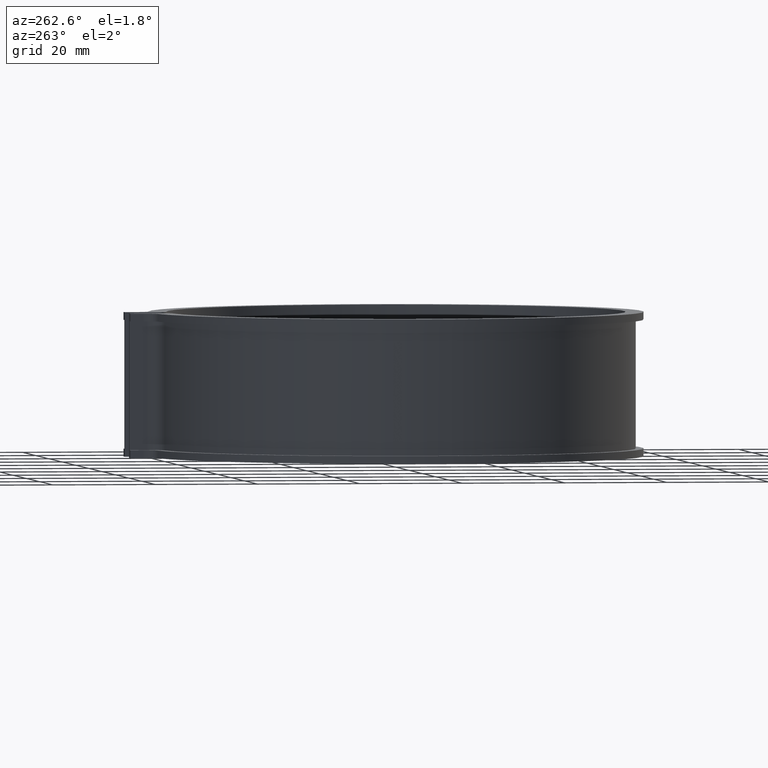
[diagram: clean part render]
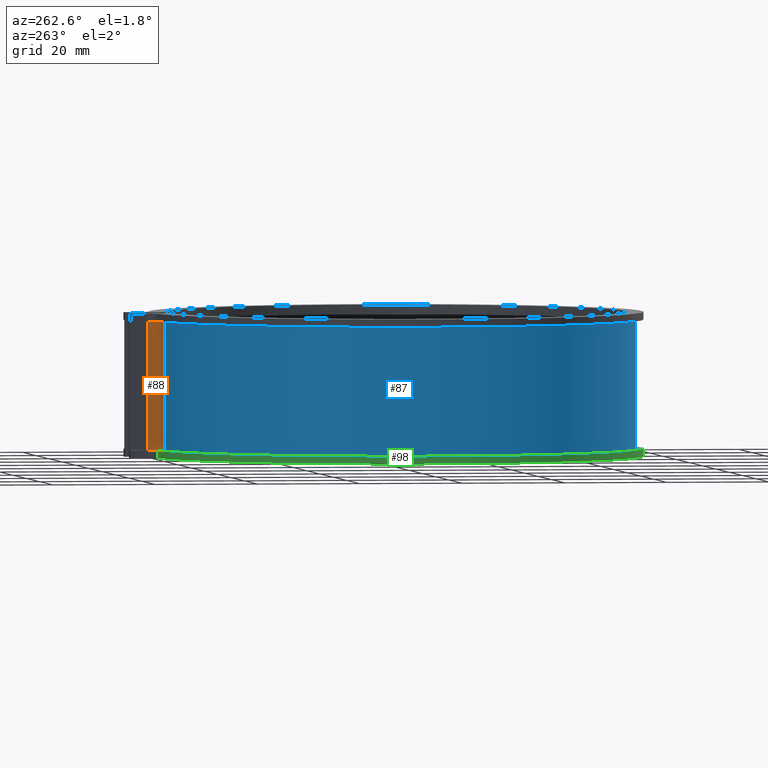
[diagram: same view with three faces highlighted in distinct colors, each labeled with its STEP entity id]
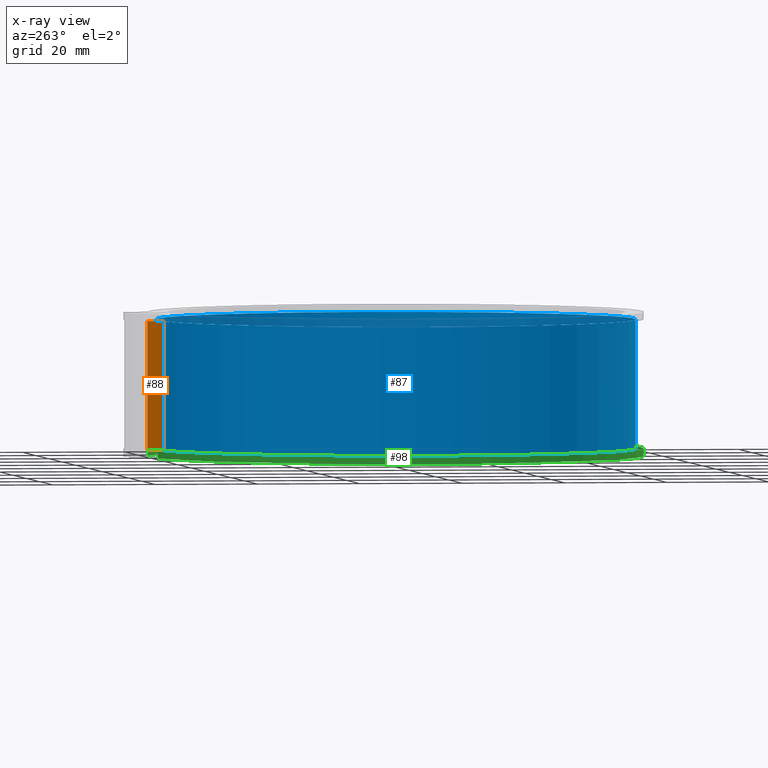
[diagram: x-ray of the same camera — body ghosted, the three highlighted faces saturated]
A machine part, auxiliary view with three faces highlighted in distinct colors.
The next image is the same camera in x-ray (body ghosted, the three faces saturated) — at least one of them is partly hidden behind the body in this view.
Their STEP definitions:

[orange] entity #88 — the highlighted cylindrical surface (edge-blend (fillet) strip) has radius 3 mm, axis along (0, 0, 1).
#88 = ADVANCED_FACE( '', ( #128 ), #129, .F. );
#128 = FACE_OUTER_BOUND( '', #180, .T. );
#129 = CYLINDRICAL_SURFACE( '', #181, 3.00000000000000 );
#180 = EDGE_LOOP( '', ( #329, #330, #331, #332 ) );
#181 = AXIS2_PLACEMENT_3D( '', #333, #334, #335 );
#329 = ORIENTED_EDGE( '', *, *, #447, .T. );
#330 = ORIENTED_EDGE( '', *, *, #486, .F. );
#331 = ORIENTED_EDGE( '', *, *, #487, .F. );
#332 = ORIENTED_EDGE( '', *, *, #429, .T. );
#333 = CARTESIAN_POINT( '', ( -7.00000000000000, 49.0530580086502, 14.0000000000000 ) );
#334 = DIRECTION( '', ( 0.000000000000000, 0.000000000000000, 1.00000000000000 ) );
#335 = DIRECTION( '', ( 0.107411385606873, 0.994214662053428, 0.000000000000000 ) );
#429 = EDGE_CURVE( '', #503, #501, #504, .T. );
#447 = EDGE_CURVE( '', #501, #537, #538, .T. );
#486 = EDGE_CURVE( '', #600, #537, #602, .T. );
#487 = EDGE_CURVE( '', #503, #600, #603, .T. );
#501 = VERTEX_POINT( '', #621 );
#503 = VERTEX_POINT( '', #624 );
#504 = LINE( '', #625, #626 );
#537 = VERTEX_POINT( '', #674 );
#538 = CIRCLE( '', #675, 3.00000000000000 );
#600 = VERTEX_POINT( '', #758 );
#602 = LINE( '', #760, #761 );
#603 = CIRCLE( '', #762, 3.00000000000000 );
#621 = CARTESIAN_POINT( '', ( -4.00000000000000, 49.0530580086502, -12.5000000000000 ) );
#624 = CARTESIAN_POINT( '', ( -4.00000000000000, 49.0530580086502, 12.5000000000000 ) );
#625 = CARTESIAN_POINT( '', ( -4.00000000000000, 49.0530580086502, 14.0000000000000 ) );
#626 = VECTOR( '', #789, 1000.00000000000 );
#674 = CARTESIAN_POINT( '', ( -6.57618567103935, 46.0831453138782, -12.5000000000000 ) );
#675 = AXIS2_PLACEMENT_3D( '', #811, #812, #813 );
#758 = CARTESIAN_POINT( '', ( -6.57618567103940, 46.0831453138782, 12.5000000000000 ) );
#760 = CARTESIAN_POINT( '', ( -6.57618567103935, 46.0831453138782, 14.0000000000000 ) );
#761 = VECTOR( '', #886, 1000.00000000000 );
#762 = AXIS2_PLACEMENT_3D( '', #887, #888, #889 );
#789 = DIRECTION( '', ( 0.000000000000000, 0.000000000000000, -1.00000000000000 ) );
#811 = CARTESIAN_POINT( '', ( -7.00000000000000, 49.0530580086502, -12.5000000000000 ) );
#812 = DIRECTION( '', ( 0.000000000000000, 0.000000000000000, -1.00000000000000 ) );
#813 = DIRECTION( '', ( 1.00000000000000, 1.11022302462516E-015, 0.000000000000000 ) );
#886 = DIRECTION( '', ( 0.000000000000000, 0.000000000000000, -1.00000000000000 ) );
#887 = CARTESIAN_POINT( '', ( -7.00000000000000, 49.0530580086502, 12.5000000000000 ) );
#888 = DIRECTION( '', ( 0.000000000000000, 0.000000000000000, -1.00000000000000 ) );
#889 = DIRECTION( '', ( 1.00000000000000, 1.11022302462516E-015, 0.000000000000000 ) );

[blue] entity #87 — the highlighted cylindrical surface (partial cylindrical patch) has radius 46.55 mm, axis along (0, 0, 1).
#87 = ADVANCED_FACE( '', ( #126 ), #127, .T. );
#126 = FACE_OUTER_BOUND( '', #178, .T. );
#127 = CYLINDRICAL_SURFACE( '', #179, 46.5500000000000 );
#178 = EDGE_LOOP( '', ( #322, #323, #324, #325 ) );
#179 = AXIS2_PLACEMENT_3D( '', #326, #327, #328 );
#322 = ORIENTED_EDGE( '', *, *, #455, .T. );
#323 = ORIENTED_EDGE( '', *, *, #484, .F. );
#324 = ORIENTED_EDGE( '', *, *, #485, .F. );
#325 = ORIENTED_EDGE( '', *, *, #486, .T. );
#326 = CARTESIAN_POINT( '', ( 8.67361737988404E-016, 1.38777878078145E-014, 14.0000000000000 ) );
#327 = DIRECTION( '', ( 0.000000000000000, 0.000000000000000, 1.00000000000000 ) );
#328 = DIRECTION( '', ( 0.107411385606873, 0.994214662053428, 0.000000000000000 ) );
#455 = EDGE_CURVE( '', #537, #550, #552, .T. );
#484 = EDGE_CURVE( '', #597, #550, #599, .T. );
#485 = EDGE_CURVE( '', #600, #597, #601, .T. );
#486 = EDGE_CURVE( '', #600, #537, #602, .T. );
#537 = VERTEX_POINT( '', #674 );
#550 = VERTEX_POINT( '', #690 );
#552 = CIRCLE( '', #692, 46.5500000000000 );
#597 = VERTEX_POINT( '', #754 );
#599 = LINE( '', #756, #757 );
#600 = VERTEX_POINT( '', #758 );
#601 = CIRCLE( '', #759, 46.5500000000000 );
#602 = LINE( '', #760, #761 );
#674 = CARTESIAN_POINT( '', ( -6.57618567103935, 46.0831453138782, -12.5000000000000 ) );
#690 = CARTESIAN_POINT( '', ( 6.57618567103934, 46.0831453138782, -12.5000000000000 ) );
#692 = AXIS2_PLACEMENT_3D( '', #829, #830, #831 );
#754 = CARTESIAN_POINT( '', ( 6.57618567103934, 46.0831453138782, 12.5000000000000 ) );
#756 = CARTESIAN_POINT( '', ( 6.57618567103934, 46.0831453138782, 14.0000000000000 ) );
#757 = VECTOR( '', #882, 1000.00000000000 );
#758 = CARTESIAN_POINT( '', ( -6.57618567103940, 46.0831453138782, 12.5000000000000 ) );
#759 = AXIS2_PLACEMENT_3D( '', #883, #884, #885 );
#760 = CARTESIAN_POINT( '', ( -6.57618567103935, 46.0831453138782, 14.0000000000000 ) );
#761 = VECTOR( '', #886, 1000.00000000000 );
#829 = CARTESIAN_POINT( '', ( -8.67361737988404E-016, 6.93889390390723E-015, -12.5000000000000 ) );
#830 = DIRECTION( '', ( 0.000000000000000, 0.000000000000000, 1.00000000000000 ) );
#831 = DIRECTION( '', ( 1.00000000000000, -5.55111512312578E-017, 0.000000000000000 ) );
#882 = DIRECTION( '', ( 0.000000000000000, 0.000000000000000, -1.00000000000000 ) );
#883 = CARTESIAN_POINT( '', ( -8.67361737988404E-016, 6.93889390390723E-015, 12.5000000000000 ) );
#884 = DIRECTION( '', ( 0.000000000000000, 0.000000000000000, 1.00000000000000 ) );
#885 = DIRECTION( '', ( 1.00000000000000, -5.55111512312578E-017, 0.000000000000000 ) );
#886 = DIRECTION( '', ( 0.000000000000000, 0.000000000000000, -1.00000000000000 ) );

[green] entity #98 — the highlighted cylindrical surface (partial cylindrical patch) has radius 48.05 mm, axis along (0, 0, -1).
#98 = ADVANCED_FACE( '', ( #148 ), #149, .T. );
#148 = FACE_OUTER_BOUND( '', #200, .T. );
#149 = CYLINDRICAL_SURFACE( '', #201, 48.0500000000000 );
#200 = EDGE_LOOP( '', ( #407, #408, #409, #410 ) );
#201 = AXIS2_PLACEMENT_3D( '', #411, #412, #413 );
#407 = ORIENTED_EDGE( '', *, *, #451, .T. );
#408 = ORIENTED_EDGE( '', *, *, #498, .F. );
#409 = ORIENTED_EDGE( '', *, *, #461, .F. );
#410 = ORIENTED_EDGE( '', *, *, #494, .T. );
#411 = CARTESIAN_POINT( '', ( -8.67361737988404E-016, 6.93889390390723E-015, -14.0000000000000 ) );
#412 = DIRECTION( '', ( 0.000000000000000, 0.000000000000000, -1.00000000000000 ) );
#413 = DIRECTION( '', ( -0.141271442986883, 0.989970898257319, 0.000000000000000 ) );
#451 = EDGE_CURVE( '', #545, #543, #546, .T. );
#461 = EDGE_CURVE( '', #561, #563, #564, .T. );
#494 = EDGE_CURVE( '', #561, #545, #614, .T. );
#498 = EDGE_CURVE( '', #563, #543, #618, .T. );
#543 = VERTEX_POINT( '', #682 );
#545 = VERTEX_POINT( '', #684 );
#546 = CIRCLE( '', #685, 48.0500000000000 );
#561 = VERTEX_POINT( '', #703 );
#563 = VERTEX_POINT( '', #705 );
#564 = CIRCLE( '', #706, 48.0500000000000 );
#614 = LINE( '', #776, #777 );
#618 = LINE( '', #784, #785 );
#682 = CARTESIAN_POINT( '', ( -7.31918892185955, 47.4892827228010, -12.5000000000000 ) );
#684 = CARTESIAN_POINT( '', ( 7.31918892185955, 47.4892827228010, -12.5000000000000 ) );
#685 = AXIS2_PLACEMENT_3D( '', #819, #820, #821 );
#703 = CARTESIAN_POINT( '', ( 7.31918892185955, 47.4892827228010, -14.0000000000000 ) );
#705 = CARTESIAN_POINT( '', ( -7.31918892185955, 47.4892827228010, -14.0000000000000 ) );
#706 = AXIS2_PLACEMENT_3D( '', #843, #844, #845 );
#776 = CARTESIAN_POINT( '', ( 7.31918892185955, 47.4892827228010, -14.0000000000000 ) );
#777 = VECTOR( '', #902, 1000.00000000000 );
#784 = CARTESIAN_POINT( '', ( -7.31918892185955, 47.4892827228010, -14.0000000000000 ) );
#785 = VECTOR( '', #906, 1000.00000000000 );
#819 = CARTESIAN_POINT( '', ( -8.67361737988404E-016, 6.93889390390723E-015, -12.5000000000000 ) );
#820 = DIRECTION( '', ( 0.000000000000000, 0.000000000000000, -1.00000000000000 ) );
#821 = DIRECTION( '', ( 1.00000000000000, 0.000000000000000, 0.000000000000000 ) );
#843 = CARTESIAN_POINT( '', ( -8.67361737988404E-016, 6.93889390390723E-015, -14.0000000000000 ) );
#844 = DIRECTION( '', ( 0.000000000000000, 0.000000000000000, -1.00000000000000 ) );
#845 = DIRECTION( '', ( 1.00000000000000, 0.000000000000000, 0.000000000000000 ) );
#902 = DIRECTION( '', ( 0.000000000000000, 0.000000000000000, 1.00000000000000 ) );
#906 = DIRECTION( '', ( 0.000000000000000, 0.000000000000000, 1.00000000000000 ) );